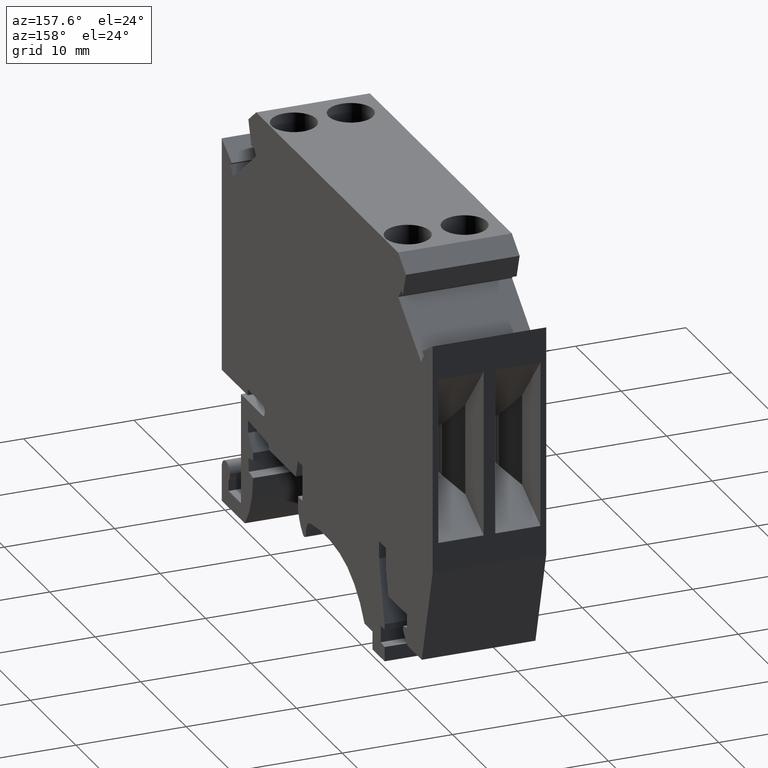
[diagram: clean part render]
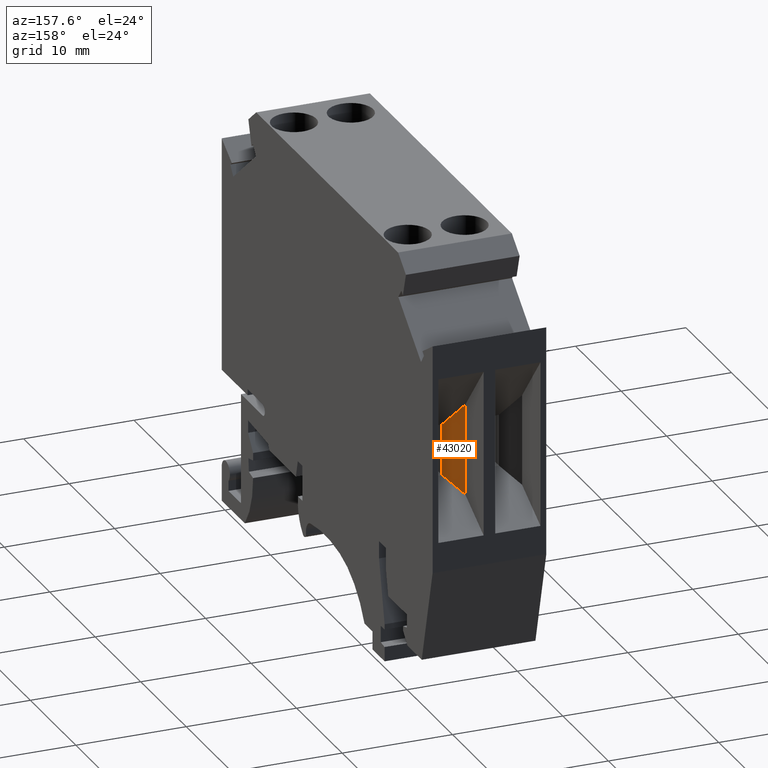
[diagram: same view with one face highlighted and labeled with its STEP entity id]
A machine part, auxiliary view. The second image highlights one B-rep face of the part: STEP entity #43020.
In plain terms, the highlighted planar face has unit normal (0.866, 0.5, 0).
Its self-contained STEP definition (entity closure, byte-faithful):
#40080=CARTESIAN_POINT('',(-2.55533629453588,29.6363010812415,5.675));
#40090=VERTEX_POINT('',#40080);
#40120=CARTESIAN_POINT('',(-19.9165433974443,9.53385075155829,
15.698497594321));
#40130=DIRECTION('',(-0.611526032477599,-0.70808277444774,
0.353064719467406));
#40140=VECTOR('',#40130,1.);
#40150=LINE('',#40120,#40140);
#40160=CARTESIAN_POINT('',(-4.67709853380776,27.1795237515583,6.9));
#40170=VERTEX_POINT('',#40160);
#40180=EDGE_CURVE('',#40090,#40170,#40150,.T.);
#41840=CARTESIAN_POINT('',(-4.67709853380776,22.5295237515583,6.9));
#41850=VERTEX_POINT('',#41840);
#41880=CARTESIAN_POINT('',(13.4527094661923,13.1343196058094,
-3.56724952915626));
#41890=DIRECTION('',(0.790104408757777,-0.409446819113338,
-0.456166993084213));
#41900=VECTOR('',#41890,1.);
#41910=LINE('',#41880,#41900);
#41920=CARTESIAN_POINT('',(-2.55533629453588,21.4299870445672,5.675));
#41930=VERTEX_POINT('',#41920);
#41940=EDGE_CURVE('',#41850,#41930,#41910,.T.);
#42430=CARTESIAN_POINT('',(-4.67709853380776,9.53385075155829,6.9));
#42440=DIRECTION('',(0.,-1.,0.));
#42450=VECTOR('',#42440,1.);
#42460=LINE('',#42430,#42450);
#42470=EDGE_CURVE('',#40170,#41850,#42460,.T.);
#42860=CARTESIAN_POINT('',(-4.67709853380776,22.5295237515583,6.9));
#42870=DIRECTION('',(0.5,0.,0.866025403784439));
#42880=DIRECTION('',(-0.866025403784439,0.,0.5));
#42890=AXIS2_PLACEMENT_3D('',#42860,#42870,#42880);
#42900=PLANE('',#42890);
#42910=CARTESIAN_POINT('',(-2.55533629453588,9.53385075155829,5.675));
#42920=DIRECTION('',(0.,1.,0.));
#42930=VECTOR('',#42920,1.);
#42940=LINE('',#42910,#42930);
#42950=EDGE_CURVE('',#41930,#40090,#42940,.T.);
#42960=ORIENTED_EDGE('',*,*,#42950,.T.);
#42970=ORIENTED_EDGE('',*,*,#41940,.T.);
#42980=ORIENTED_EDGE('',*,*,#42470,.T.);
#42990=ORIENTED_EDGE('',*,*,#40180,.T.);
#43000=EDGE_LOOP('',(#42990,#42980,#42970,#42960));
#43010=FACE_OUTER_BOUND('',#43000,.T.);
#43020=ADVANCED_FACE('',(#43010),#42900,.T.);